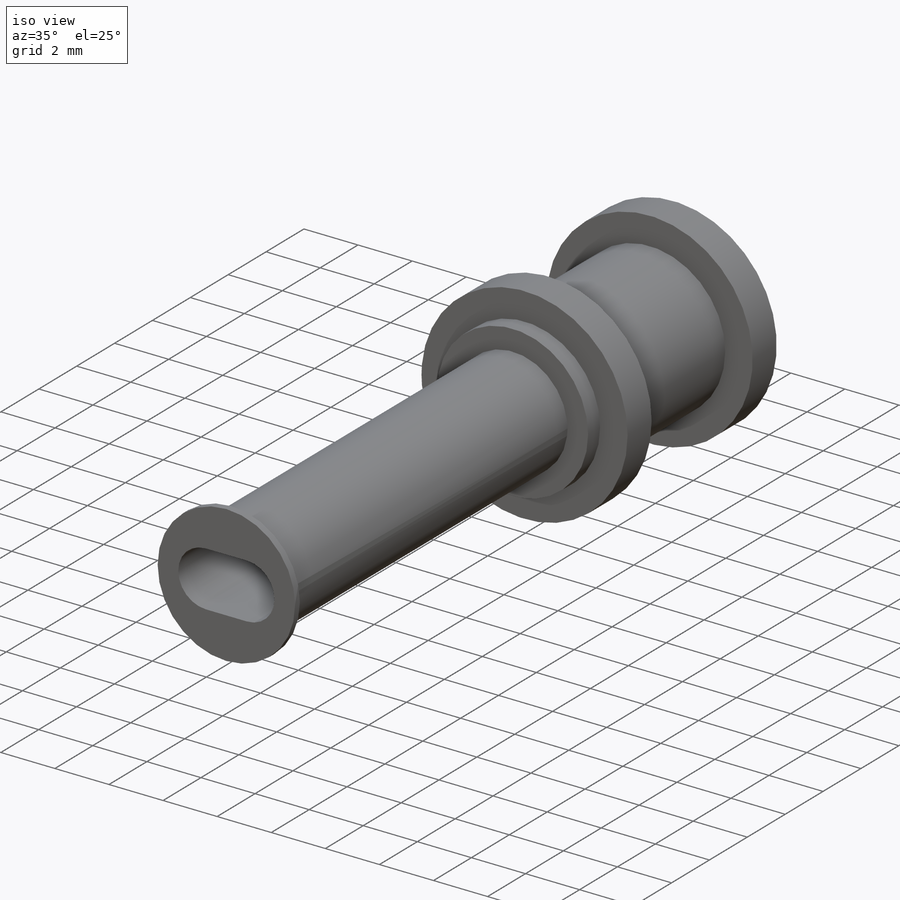
[diagram: iso view]
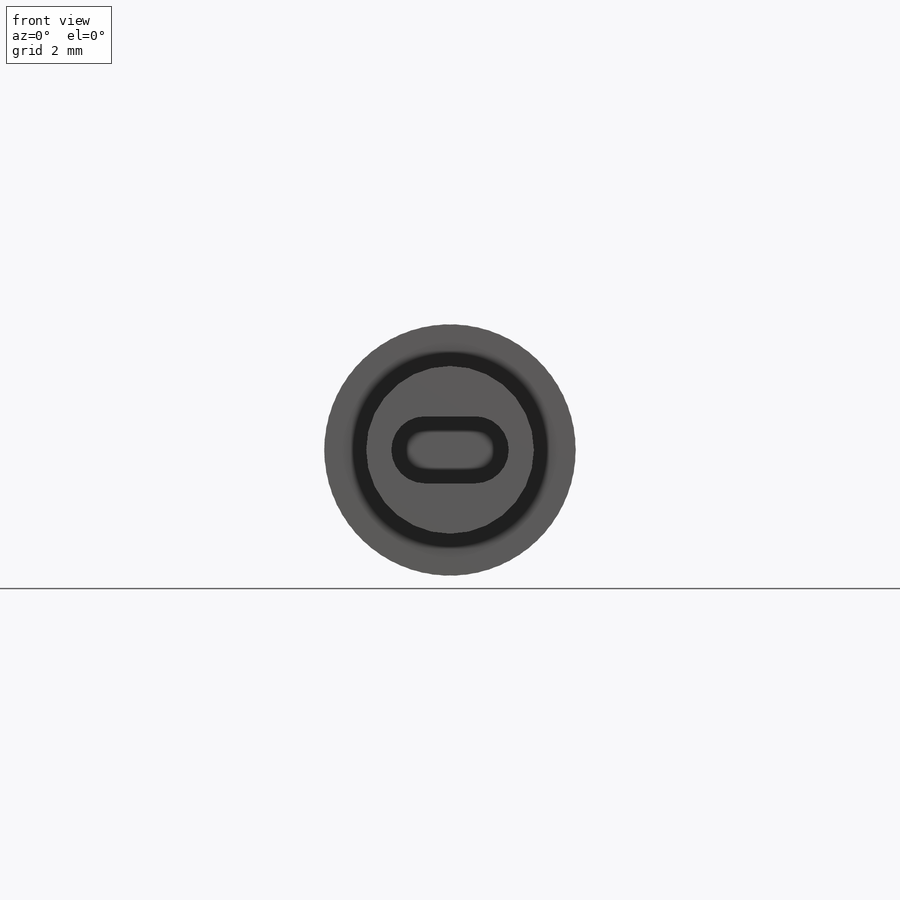
[diagram: front view]
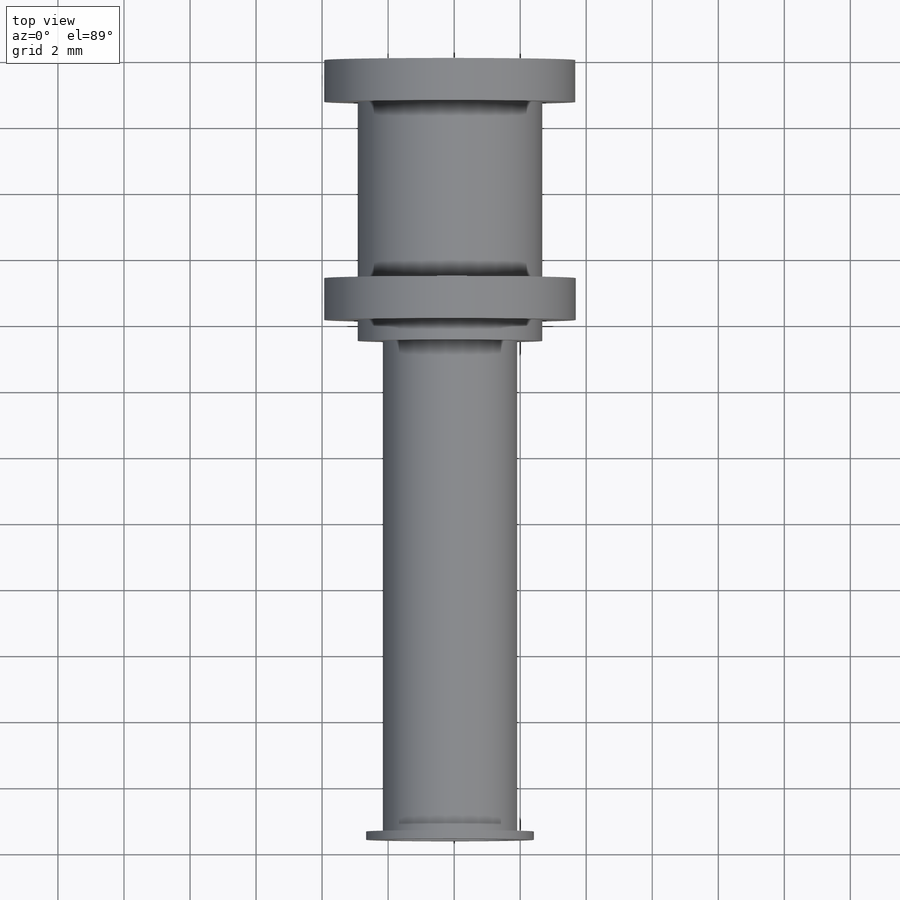
[diagram: top view]
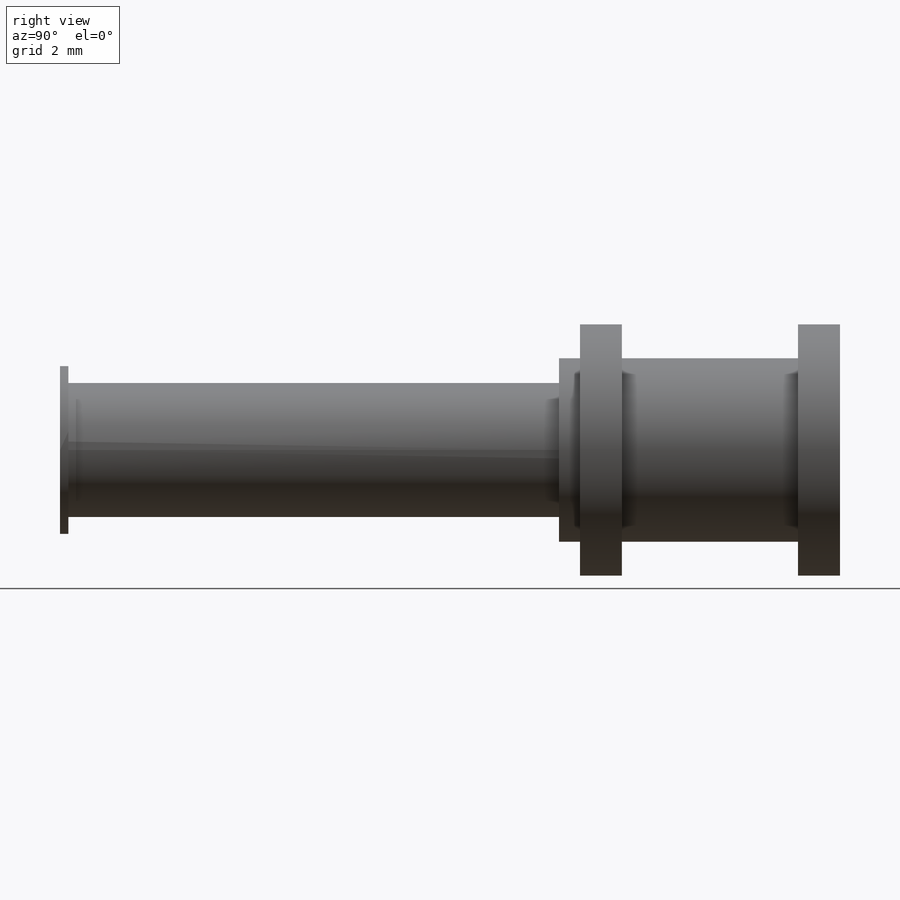
[diagram: right view]
SOLIDWORKS PART (.sldprt)
format: sldprt  version: not decoded by parser v0  size: 351,744 bytes
history: native  units: mm
features: sketch x6, extrude x5, material x1, plane x1, mirror x1, cut_extrude x1 (+12 scaffold rows collapsed)
feature tree (27):
  scaffold x12  (default folders/planes/origin — collapsed)
  material  "PVC Rigid"
  sketch  "Sketch1"  dims[c1.D2=7.62mm c1.D3=~5.005615mm c1.D4=~4.902756mm c1.D6=4.318mm c1.D9=0.508mm c1.D1=4.318mm c1.D5=0.508mm c2.D1=6.604mm c2.D4=5.08mm c2.D7=4.572mm c3.D1=19.05mm c3.D3=~14.58202mm c3.D4=~12.042473mm c4.D3=0.508mm c4.D4=0.508mm c4.D6=0.508mm c4.D7=0.508mm c4.D8=0.508mm c4.D1=4.7625mm c5.D6=19.05mm c5.D9=19.05mm c6.D6=11.684mm c6.D1=4.7625mm c6.D5=~4.805419mm c6.D7=7.874mm c6.D8=3.937mm c7.D1=0.254mm c7.D8=1.524mm c7.D9=1.524mm c8.D1=3.048mm c8.D5=0.508mm c8.D6=0.508mm c8.D7=0.508mm c9.D1=0.127mm c9.D5=0.508mm c9.D7=0.508mm]
  extrude  "Boss-Extrude1"  Depth=3.937mm
  sketch  "Sketch2"  dims[D1=~3.212712mm]
  extrude  "Boss-Extrude2"  Depth=1.27mm
  plane  "Plane1"
  mirror  "Mirror1"
  sketch  "Sketch3"  dims[D1=~3.005141mm]
  extrude  "Boss-Extrude3"  Depth=0.635mm
  sketch  "Sketch4"  dims[D1=~2.116291mm]
  extrude  "Boss-Extrude4"  Depth=15.113mm
  sketch  "Sketch5"  dims[D1=~3.35462mm]
  extrude  "Boss-Extrude5"  Depth=0.254mm
  sketch  "Sketch6"  dims[D1=1.524mm]
  cut_extrude  "Cut-Extrude1"  Depth=15.24mm
decode coverage: 12 of 13 modeling features carry decoded parameters
note: ~ marks probable driven/reference dimensions
note: suppression state not decoded; provenance and decode notes live in map.json
